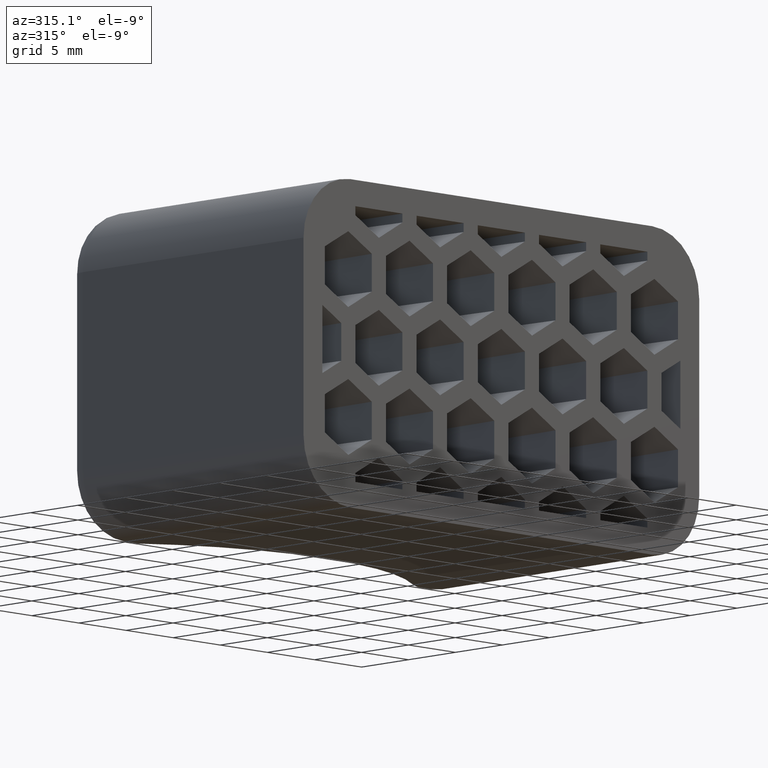
[diagram: clean part render]
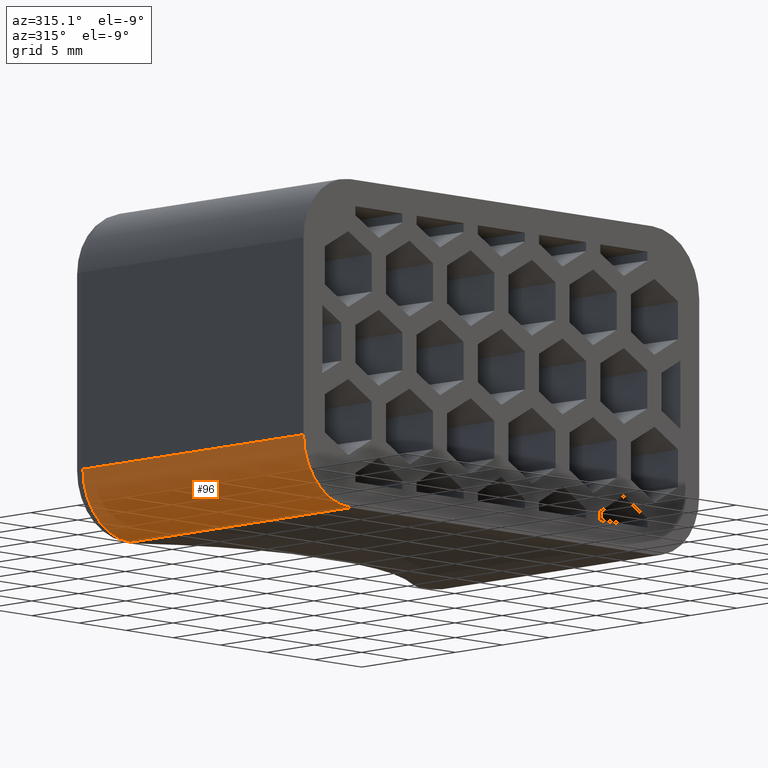
[diagram: same view with one face highlighted and labeled with its STEP entity id]
A machine part, auxiliary view. The second image highlights one B-rep face of the part: STEP entity #96.
In plain terms, the highlighted cylindrical surface (partial cylindrical patch) has radius 5 mm, axis along (0, 1, 0).
Its self-contained STEP definition (entity closure, byte-faithful):
#96 = ADVANCED_FACE( '', ( #408 ), #409, .T. );
#408 = FACE_OUTER_BOUND( '', #954, .T. );
#409 = CYLINDRICAL_SURFACE( '', #955, 5.00000000000000 );
#954 = EDGE_LOOP( '', ( #1770, #1771, #1772, #1773 ) );
#955 = AXIS2_PLACEMENT_3D( '', #1774, #1775, #1776 );
#1770 = ORIENTED_EDGE( '', *, *, #3717, .F. );
#1771 = ORIENTED_EDGE( '', *, *, #3694, .T. );
#1772 = ORIENTED_EDGE( '', *, *, #3699, .F. );
#1773 = ORIENTED_EDGE( '', *, *, #3639, .F. );
#1774 = CARTESIAN_POINT( '', ( -16.0000000000000, 25.0000000000000, -7.50000000000000 ) );
#1775 = DIRECTION( '', ( 6.93889390390723E-017, 1.00000000000000, 0.000000000000000 ) );
#1776 = DIRECTION( '', ( 1.00000000000000, -6.93889390390723E-017, 0.000000000000000 ) );
#3639 = EDGE_CURVE( '', #4445, #4432, #4447, .T. );
#3694 = EDGE_CURVE( '', #4542, #4546, #4548, .F. );
#3699 = EDGE_CURVE( '', #4432, #4546, #4555, .F. );
#3717 = EDGE_CURVE( '', #4542, #4445, #4581, .T. );
#4432 = VERTEX_POINT( '', #5652 );
#4445 = VERTEX_POINT( '', #5668 );
#4447 = CIRCLE( '', #5671, 5.00000000000000 );
#4542 = VERTEX_POINT( '', #5811 );
#4546 = VERTEX_POINT( '', #5816 );
#4548 = CIRCLE( '', #5818, 5.00000000000000 );
#4555 = LINE( '', #5827, #5828 );
#4581 = LINE( '', #5860, #5861 );
#5652 = CARTESIAN_POINT( '', ( -16.0000000000000, -6.93889390390723E-015, -12.5000000000000 ) );
#5668 = CARTESIAN_POINT( '', ( -21.0000000000000, -1.38777878078145E-014, -7.49999999999999 ) );
#5671 = AXIS2_PLACEMENT_3D( '', #6915, #6916, #6917 );
#5811 = CARTESIAN_POINT( '', ( -21.0000000000000, 23.5000000000000, -7.50000000000000 ) );
#5816 = CARTESIAN_POINT( '', ( -16.0000000000000, 23.5000000000000, -12.5000000000000 ) );
#5818 = AXIS2_PLACEMENT_3D( '', #6988, #6989, #6990 );
#5827 = CARTESIAN_POINT( '', ( -16.0000000000000, 44.3000000000000, -12.5000000000000 ) );
#5828 = VECTOR( '', #6999, 1000.00000000000 );
#5860 = CARTESIAN_POINT( '', ( -21.0000000000000, 25.0000000000000, -7.50000000000000 ) );
#5861 = VECTOR( '', #7039, 1000.00000000000 );
#6915 = CARTESIAN_POINT( '', ( -16.0000000000000, -1.38777878078145E-014, -7.50000000000000 ) );
#6916 = DIRECTION( '', ( 0.000000000000000, -1.00000000000000, 0.000000000000000 ) );
#6917 = DIRECTION( '', ( 0.000000000000000, 0.000000000000000, -1.00000000000000 ) );
#6988 = CARTESIAN_POINT( '', ( -16.0000000000000, 23.5000000000000, -7.50000000000000 ) );
#6989 = DIRECTION( '', ( 0.000000000000000, 1.00000000000000, 0.000000000000000 ) );
#6990 = DIRECTION( '', ( 0.000000000000000, 0.000000000000000, 1.00000000000000 ) );
#6999 = DIRECTION( '', ( -6.93889390390723E-017, -1.00000000000000, 0.000000000000000 ) );
#7039 = DIRECTION( '', ( -6.93889390390723E-017, -1.00000000000000, 0.000000000000000 ) );